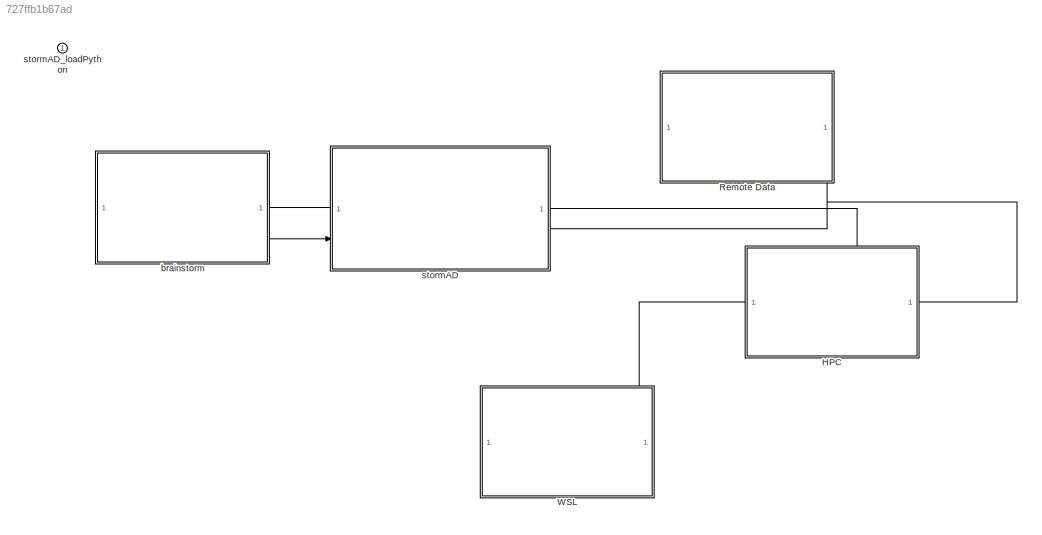
MODEL slx_727ffb1b67ad
KIND model
CONFIG AbsTol = auto
CONFIG EnableMultiTasking = off
CONFIG FixedStep = auto
CONFIG MaxStep = auto
CONFIG MinStep = auto
CONFIG RelTol = 1e-3
CONFIG SampleTimeConstraint = Unconstrained
CONFIG SolverName = FixedStepDiscrete
CONFIG StartTime = 0.0
CONFIG StopTime = 10.0
WORKSPACE source: mxarray member
WORKSPACE EnvironmentPort: Simulink.Bus (value not decoded)
BLOCK [ModelReference] HPC
  ModelNameDialog = HPC_service
  ModelReferenceVersion = 1.2
  PortSchema = {"entries":[{"content":{"headerSize":38,"margin":15,"minimumSpacing":25,"sides":[{"content":{"connectorIds":["Out1"]},"type":"ConnectorPlacement.EquallySpacedRectSide","uuid":"7074e736-93ca-48e6-9107-0c0acde2c1e1"},{"content":{"side":"RIGHT"},"type":"ConnectorPlacement.EquallySpacedRectSide","uuid":"49ca3538-4b0a-47e3-9b9f-d0d67086357c"},{"content":{"connectorIds":["In1"],"side":"TOP"},"type":"Con...<+270ch>
  ScheduleRates = on
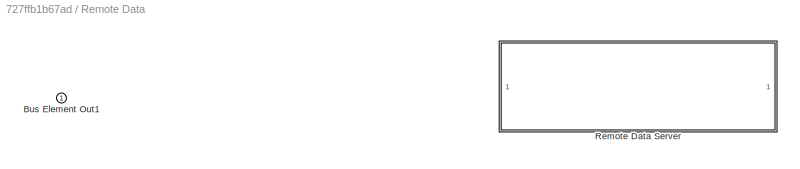
BLOCK [SubSystem] Remote Data
  PortSchema = {"entries":[{"content":{"headerSize":26,"margin":15,"minimumSpacing":25,"sides":[{"content":{"connectorIds":["Out1"]},"type":"ConnectorPlacement.EquallySpacedRectSide","uuid":"7074e736-93ca-48e6-9107-0c0acde2c1e1"},{"content":{"side":"RIGHT"},"type":"ConnectorPlacement.EquallySpacedRectSide","uuid":"49ca3538-4b0a-47e3-9b9f-d0d67086357c"},{"content":{"side":"TOP"},"type":"ConnectorPlacement.Equally...<+247ch>
BLOCK [Outport] Remote Data/Bus Element Out1
  AllowServiceAccess = on
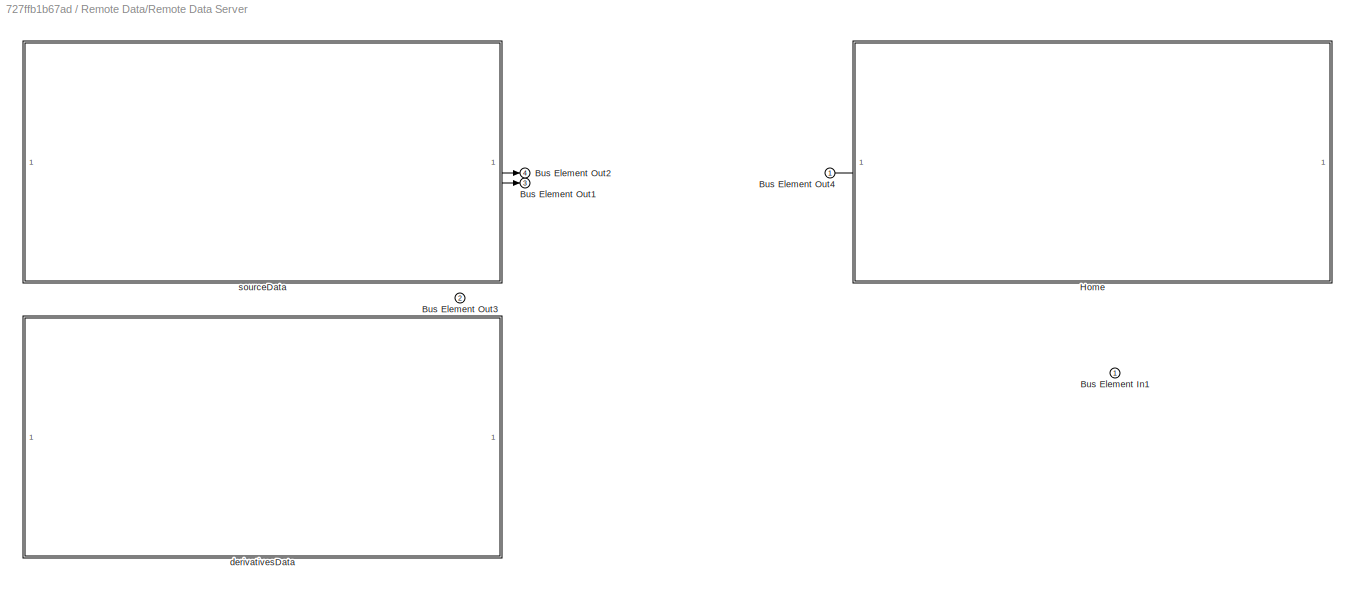
BLOCK [SubSystem] Remote Data/Remote Data Server
  PortSchema = {"entries":[{"content":{"headerSize":26,"margin":15,"minimumSpacing":25,"sides":[{"content":{"connectorIds":["Out1","In1"]},"type":"ConnectorPlacement.EquallySpacedRectSide","uuid":"d99db108-8c8a-4010-81b2-f142fbf318f5"},{"content":{"connectorIds":["Out2"],"side":"RIGHT"},"type":"ConnectorPlacement.EquallySpacedRectSide","uuid":"9190d96c-22e3-4cc9-a507-8f094dc67743"},{"content":{"connectorIds":["O...<+434ch>
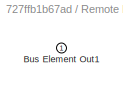
BLOCK [SubSystem] Remote Data/Remote Data Server/ sourceData
  PortSchema = {"entries":[{"content":{"headerSize":26,"margin":15,"minimumSpacing":25,"sides":[{"content":{},"type":"ConnectorPlacement.EquallySpacedRectSide","uuid":"a3539b9a-22db-4da3-b271-35b287ced3a1"},{"content":{"connectorIds":["Out1"],"side":"RIGHT"},"type":"ConnectorPlacement.EquallySpacedRectSide","uuid":"72d9f298-5062-46d4-b3c5-f2fa85d7a7a6"},{"content":{"side":"TOP"},"type":"ConnectorPlacement.Equall...<+248ch>
BLOCK [Outport] Remote Data/Remote Data Server/ sourceData/Bus Element Out1
  AllowServiceAccess = on
BLOCK [Inport] Remote Data/Remote Data Server/Bus Element In1
BLOCK [Outport] Remote Data/Remote Data Server/Bus Element Out1
  AllowServiceAccess = on
  Port = 3
BLOCK [Outport] Remote Data/Remote Data Server/Bus Element Out2
  AllowServiceAccess = on
  Port = 4
BLOCK [Outport] Remote Data/Remote Data Server/Bus Element Out3
  AllowServiceAccess = on
  Port = 2
BLOCK [Outport] Remote Data/Remote Data Server/Bus Element Out4
  AllowServiceAccess = on
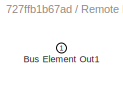
BLOCK [SubSystem] Remote Data/Remote Data Server/Home
  PortSchema = {"entries":[{"content":{"headerSize":26,"margin":15,"minimumSpacing":25,"sides":[{"content":{"connectorIds":["Out1"]},"type":"ConnectorPlacement.EquallySpacedRectSide","uuid":"a3539b9a-22db-4da3-b271-35b287ced3a1"},{"content":{"side":"RIGHT"},"type":"ConnectorPlacement.EquallySpacedRectSide","uuid":"72d9f298-5062-46d4-b3c5-f2fa85d7a7a6"},{"content":{"side":"TOP"},"type":"ConnectorPlacement.Equally...<+247ch>
BLOCK [Outport] Remote Data/Remote Data Server/Home/Bus Element Out1
  AllowServiceAccess = on
BLOCK [SubSystem] Remote Data/Remote Data Server/derivativesData
  PortSchema = {"entries":[{"content":{"headerSize":26,"margin":15,"minimumSpacing":25,"sides":[{"content":{},"type":"ConnectorPlacement.EquallySpacedRectSide","uuid":"a3539b9a-22db-4da3-b271-35b287ced3a1"},{"content":{"side":"RIGHT"},"type":"ConnectorPlacement.EquallySpacedRectSide","uuid":"72d9f298-5062-46d4-b3c5-f2fa85d7a7a6"},{"content":{"side":"TOP"},"type":"ConnectorPlacement.EquallySpacedRectSide","uuid":...<+224ch>
BLOCK [ModelReference] WSL
  ModelNameDialog = WSL_service
  ModelReferenceVersion = 1.2
  PortSchema = {"entries":[{"content":{"headerSize":38,"margin":15,"minimumSpacing":25,"sides":[{"content":{"connectorIds":["In1"]},"type":"ConnectorPlacement.EquallySpacedRectSide","uuid":"e4721c40-b49e-4ac5-95ff-3d551931e75b"},{"content":{"side":"RIGHT"},"type":"ConnectorPlacement.EquallySpacedRectSide","uuid":"c82ecebb-3746-4618-8630-b662b5164920"},{"content":{"side":"TOP"},"type":"ConnectorPlacement.EquallyS...<+246ch>
  ScheduleRates = on
BLOCK [ModelReference] brainstorm
  ModelNameDialog = brainstorm_service
  ModelReferenceVersion = 1.5
  PortSchema = {"entries":[{"content":{"headerSize":38,"margin":15,"minimumSpacing":25,"sides":[{"content":{},"type":"ConnectorPlacement.EquallySpacedRectSide","uuid":"e4721c40-b49e-4ac5-95ff-3d551931e75b"},{"content":{"connectorIds":["Out1","In1"],"side":"RIGHT"},"type":"ConnectorPlacement.EquallySpacedRectSide","uuid":"c82ecebb-3746-4618-8630-b662b5164920"},{"content":{"side":"TOP"},"type":"ConnectorPlacement....<+254ch>
  ScheduleRates = on
BLOCK [ModelReference] stormAD
  ModelNameDialog = stormAD_Architecture.slx
  ModelReferenceVersion = 1.21
  PortSchema = {"entries":[{"content":{"headerSize":38,"margin":15,"minimumSpacing":25,"sides":[{"content":{"connectorIds":["In3","Out1"]},"type":"ConnectorPlacement.EquallySpacedRectSide","uuid":"e4721c40-b49e-4ac5-95ff-3d551931e75b"},{"content":{"connectorIds":["In2","In1"],"side":"RIGHT"},"type":"ConnectorPlacement.EquallySpacedRectSide","uuid":"c82ecebb-3746-4618-8630-b662b5164920"},{"content":{"side":"TOP"}...<+581ch>
  ScheduleRates = on
BLOCK [Inport] stormAD_loadPython
  OutputFunctionCall = on
NET HPC:1 -> WSL:1, stormAD:1
NET Remote Data/Remote Data Server/ sourceData:1 -> Remote Data/Remote Data Server/Bus Element Out1:1, Remote Data/Remote Data Server/Bus Element Out2:1
LINE Remote Data/Remote Data Server/Home:1 -> Remote Data/Remote Data Server/Bus Element Out4:1
NET Remote Data:1 -> HPC:1, stormAD:2
LINE brainstorm:1 -> stormAD:3
LINE stormAD:1 -> brainstorm:1
note: NET lines group one-source signal fan-out (src -> all destinations, sorted); 1:1 wires keep LINE
